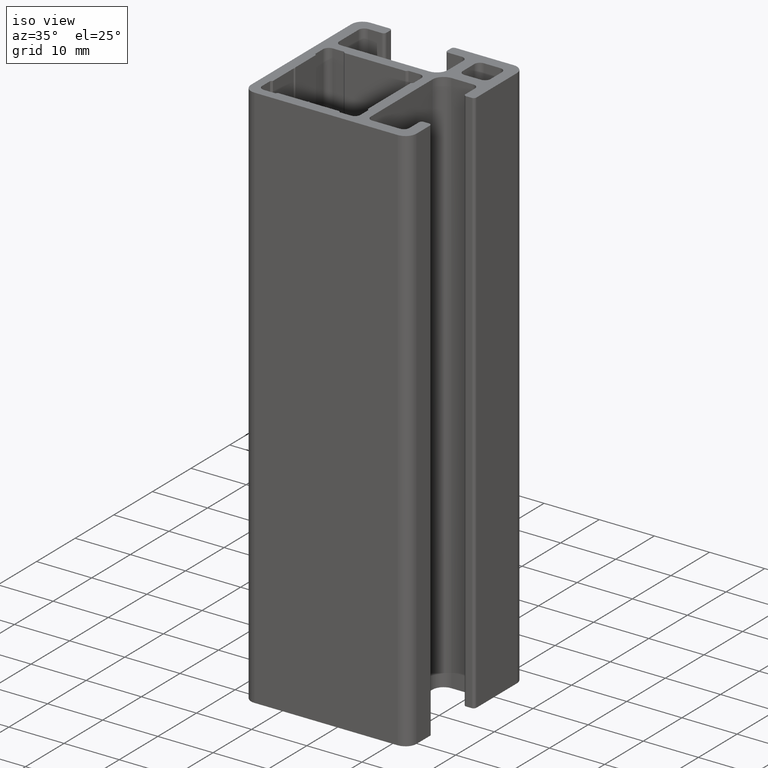
[diagram: clean part render]
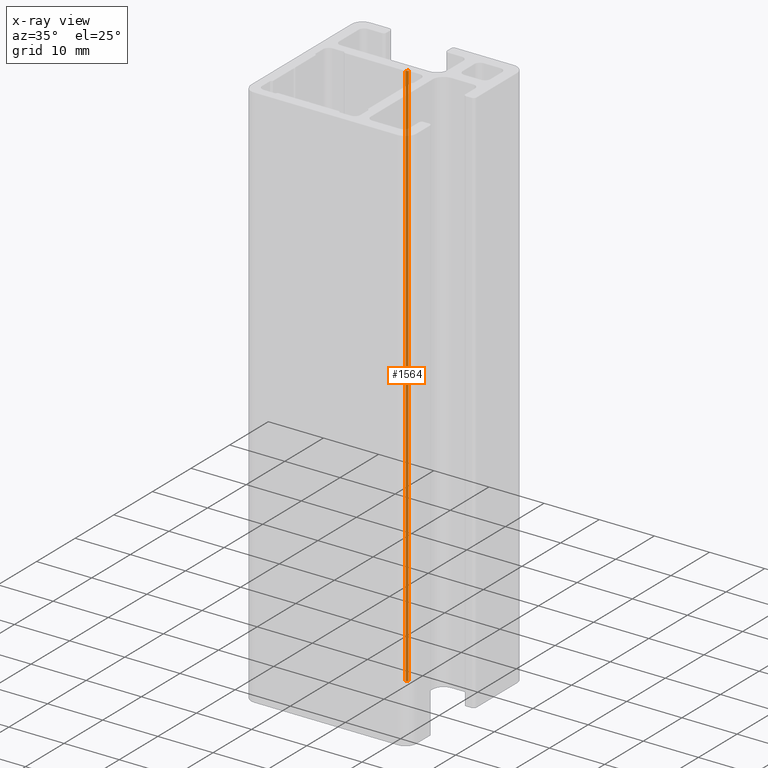
[diagram: x-ray — body ghosted, one internal face saturated and labeled with its STEP entity id]
A machine part, iso view, then the same camera in x-ray: the body is ghosted and one INTERNAL B-rep face — a face not visible from any outside direction — is saturated and labeled: STEP entity #1564.
In plain terms, the highlighted planar face has unit normal (-0.7071, 0.7071, 0).
Its self-contained STEP definition (entity closure, byte-faithful):
#43=PLANE('',#1660);
#102=FACE_OUTER_BOUND('',#182,.T.);
#182=EDGE_LOOP('',(#1161,#1162,#1163,#1164));
#313=LINE('',#2391,#491);
#315=LINE('',#2395,#493);
#316=LINE('',#2397,#494);
#317=LINE('',#2398,#495);
#491=VECTOR('',#1921,100.);
#493=VECTOR('',#1925,0.424264068711922);
#494=VECTOR('',#1926,100.);
#495=VECTOR('',#1927,0.424264068711922);
#709=VERTEX_POINT('',#2388);
#710=VERTEX_POINT('',#2390);
#711=VERTEX_POINT('',#2394);
#712=VERTEX_POINT('',#2396);
#895=EDGE_CURVE('',#710,#709,#313,.T.);
#897=EDGE_CURVE('',#711,#709,#315,.T.);
#898=EDGE_CURVE('',#712,#711,#316,.T.);
#899=EDGE_CURVE('',#710,#712,#317,.T.);
#1161=ORIENTED_EDGE('',*,*,#897,.F.);
#1162=ORIENTED_EDGE('',*,*,#898,.F.);
#1163=ORIENTED_EDGE('',*,*,#899,.F.);
#1164=ORIENTED_EDGE('',*,*,#895,.T.);
#1564=ADVANCED_FACE('',(#102),#43,.F.);
#1660=AXIS2_PLACEMENT_3D('',#2393,#1923,#1924);
#1921=DIRECTION('',(0.,0.,1.));
#1923=DIRECTION('center_axis',(-0.70710678118655,0.707106781186545,0.));
#1924=DIRECTION('ref_axis',(-0.707106781186545,-0.70710678118655,0.));
#1925=DIRECTION('',(0.707106781186545,0.70710678118655,0.));
#1926=DIRECTION('',(0.,0.,1.));
#1927=DIRECTION('',(-0.707106781186545,-0.70710678118655,0.));
#2388=CARTESIAN_POINT('',(1.34999999999998,4.39999999999999,100.));
#2390=CARTESIAN_POINT('',(1.34999999999998,4.39999999999999,0.));
#2391=CARTESIAN_POINT('',(1.34999999999998,4.39999999999999,0.));
#2393=CARTESIAN_POINT('Origin',(1.34999999999998,4.39999999999999,0.));
#2394=CARTESIAN_POINT('',(1.04999999999999,4.1,100.));
#2395=CARTESIAN_POINT('',(-0.0874999999026438,2.96250000009736,100.));
#2396=CARTESIAN_POINT('',(1.04999999999999,4.1,0.));
#2397=CARTESIAN_POINT('',(1.04999999999999,4.1,0.));
#2398=CARTESIAN_POINT('',(-0.0874999999026438,2.96250000009736,0.));